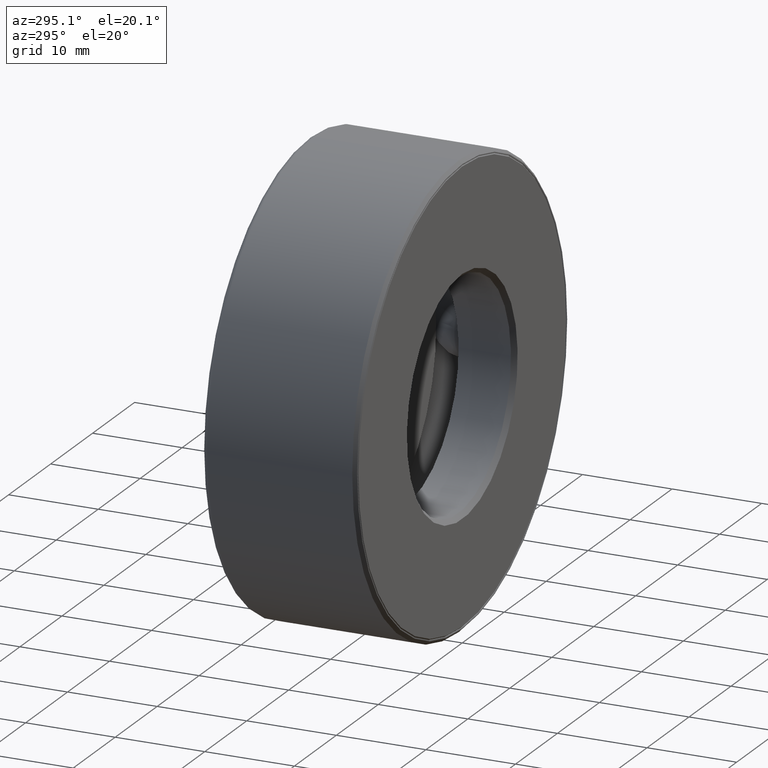
[diagram: clean part render]
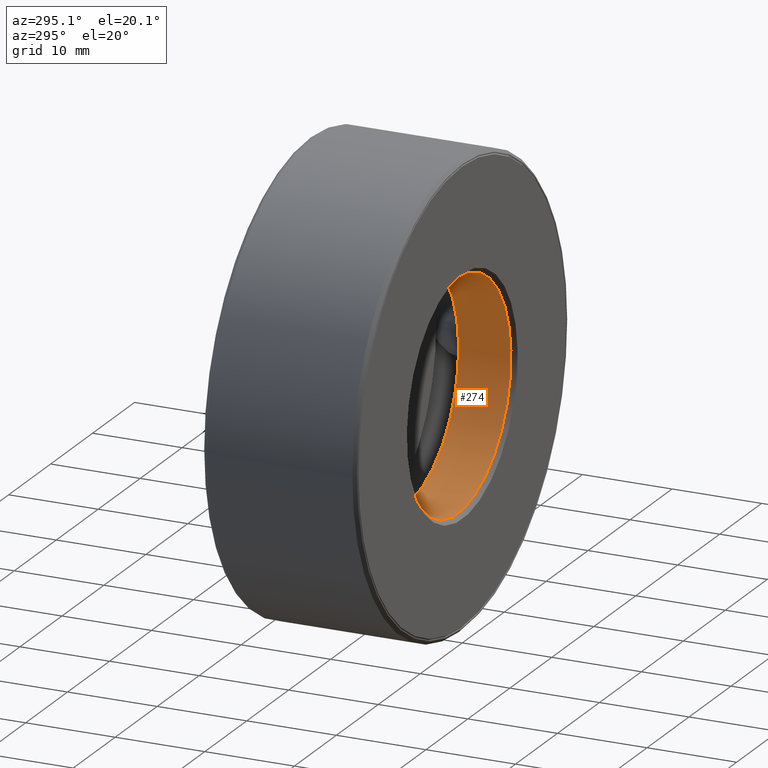
[diagram: same view with one face highlighted and labeled with its STEP entity id]
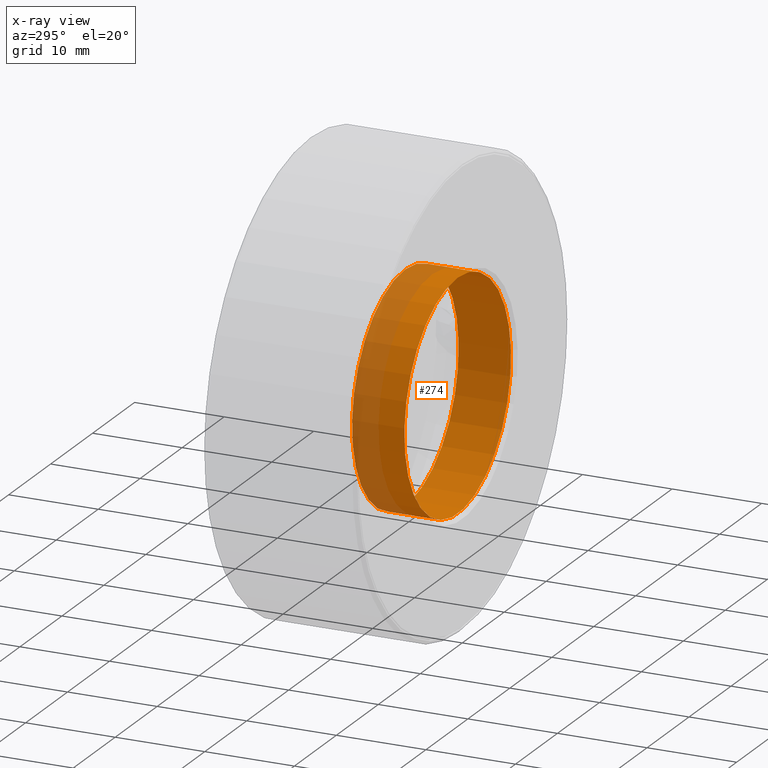
[diagram: x-ray of the same camera — body ghosted, the highlighted face saturated]
A machine part, auxiliary view. The second image highlights one B-rep face of the part: STEP entity #274.
The next image is the same camera in x-ray: the body ghosted, the highlighted face saturated — about 26% of this face is hidden behind the body in this view.
In plain terms, the highlighted cylindrical surface (bore or boss wall) has radius 12.7 mm, axis along (-0, 1, -0).
Its self-contained STEP definition (entity closure, byte-faithful):
#13 = VERTEX_POINT ( 'NONE', #530 ) ;
#36 = FACE_OUTER_BOUND ( 'NONE', #542, .T. ) ;
#77 = ORIENTED_EDGE ( 'NONE', *, *, #85, .T. ) ;
#84 = CIRCLE ( 'NONE', #455, 0.5000000000000000000 ) ;
#85 = EDGE_CURVE ( 'NONE', #13, #13, #267, .T. ) ;
#224 = CARTESIAN_POINT ( 'NONE',  ( 0.0000000000000000000, 0.02000000000000033300, 0.5000000000000000000 ) ) ;
#234 = DIRECTION ( 'NONE',  ( 0.0000000000000000000, 0.0000000000000000000, 1.000000000000000000 ) ) ;
#267 = CIRCLE ( 'NONE', #497, 0.5000000000000001100 ) ;
#274 = ADVANCED_FACE ( 'NONE', ( #463, #36 ), #335, .F. ) ;
#284 = DIRECTION ( 'NONE',  ( -0.0000000000000000000, 1.000000000000000000, -0.0000000000000000000 ) ) ;
#304 = DIRECTION ( 'NONE',  ( 0.0000000000000000000, 0.0000000000000000000, 1.000000000000000000 ) ) ;
#335 = CYLINDRICAL_SURFACE ( 'NONE', #563, 0.5000000000000000000 ) ;
#341 = DIRECTION ( 'NONE',  ( -0.0000000000000000000, 1.000000000000000000, -0.0000000000000000000 ) ) ;
#369 = ORIENTED_EDGE ( 'NONE', *, *, #399, .F. ) ;
#395 = DIRECTION ( 'NONE',  ( -0.0000000000000000000, 1.000000000000000000, -0.0000000000000000000 ) ) ;
#399 = EDGE_CURVE ( 'NONE', #405, #405, #84, .T. ) ;
#405 = VERTEX_POINT ( 'NONE', #224 ) ;
#411 = EDGE_LOOP ( 'NONE', ( #369 ) ) ;
#455 = AXIS2_PLACEMENT_3D ( 'NONE', #579, #395, #304 ) ;
#463 = FACE_OUTER_BOUND ( 'NONE', #411, .T. ) ;
#497 = AXIS2_PLACEMENT_3D ( 'NONE', #511, #284, #234 ) ;
#511 = CARTESIAN_POINT ( 'NONE',  ( 0.0000000000000000000, 0.2500000000000000600, 0.0000000000000000000 ) ) ;
#530 = CARTESIAN_POINT ( 'NONE',  ( 0.0000000000000000000, 0.2500000000000000600, 0.5000000000000001100 ) ) ;
#542 = EDGE_LOOP ( 'NONE', ( #77 ) ) ;
#561 = DIRECTION ( 'NONE',  ( 0.0000000000000000000, 0.0000000000000000000, 1.000000000000000000 ) ) ;
#563 = AXIS2_PLACEMENT_3D ( 'NONE', #567, #341, #561 ) ;
#567 = CARTESIAN_POINT ( 'NONE',  ( 0.0000000000000000000, 0.0000000000000000000, 0.0000000000000000000 ) ) ;
#579 = CARTESIAN_POINT ( 'NONE',  ( 0.0000000000000000000, 0.02000000000000033300, 0.0000000000000000000 ) ) ;